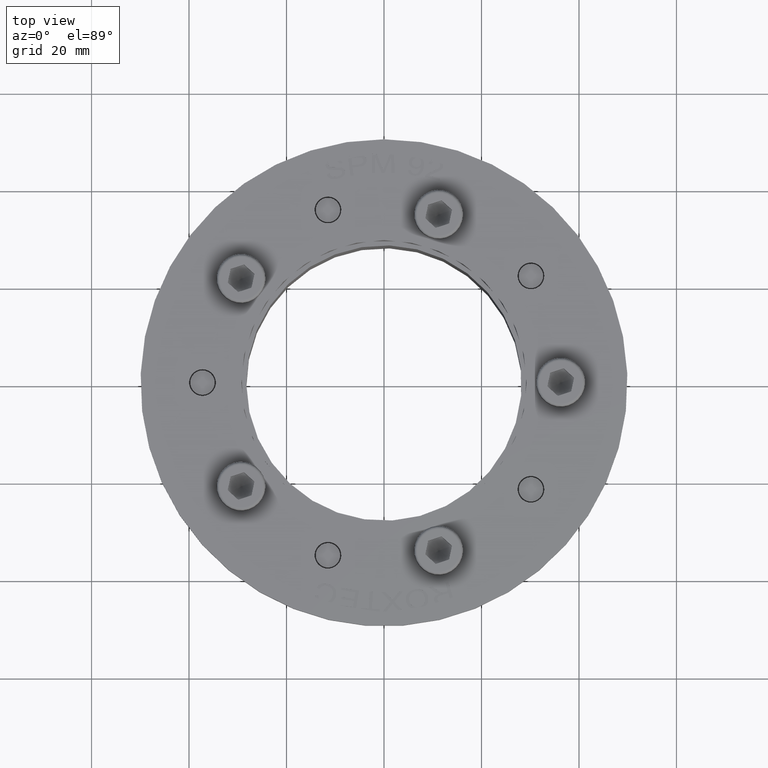
[diagram: clean part render]
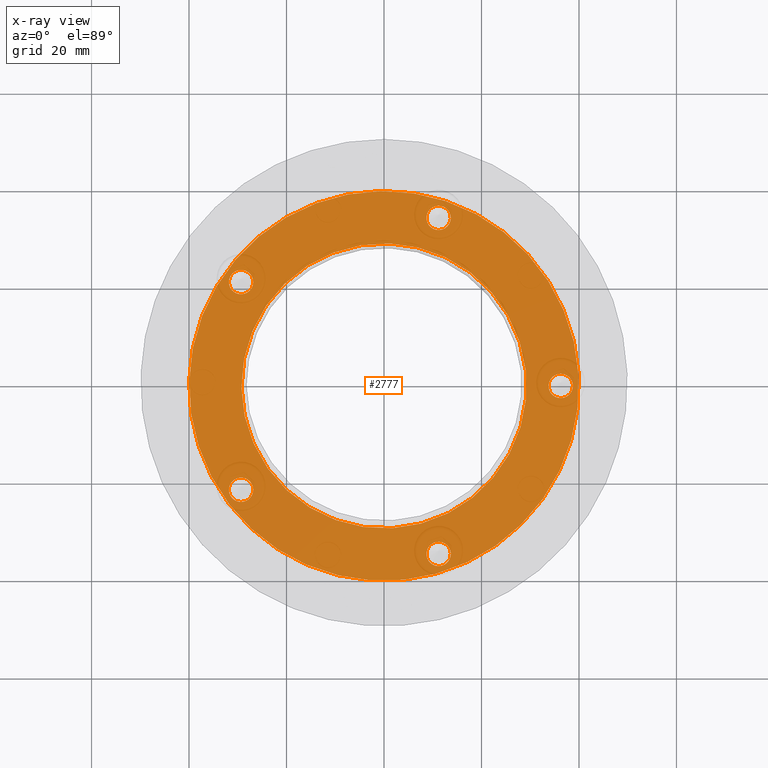
[diagram: x-ray — body ghosted, one internal face saturated and labeled with its STEP entity id]
A machine part, top view, then the same camera in x-ray: the body is ghosted and one INTERNAL B-rep face — a face not visible from any outside direction — is saturated and labeled: STEP entity #2777.
In plain terms, the highlighted planar face has unit normal (0, 0, 1).
Its self-contained STEP definition (entity closure, byte-faithful):
#2560=CARTESIAN_POINT('',(19.480000000000008,1.426637E-014,3.582092E-015));
#2561=VERTEX_POINT('',#2560);
#2562=CARTESIAN_POINT('',(-9.769999999999993,7.771561E-015,0.0));
#2563=DIRECTION('',(0.0,-1.0,0.0));
#2564=DIRECTION('',(-1.0,0.0,0.0));
#2565=AXIS2_PLACEMENT_3D('',#2562,#2563,#2564);
#2566=CIRCLE('',#2565,29.250000000000004);
#2567=EDGE_CURVE('',#2561,#2561,#2566,.T.);
#2588=CARTESIAN_POINT('',(-43.473256229761958,1.715389E-016,13.579507336829728));
#2589=VERTEX_POINT('',#2588);
#2590=CARTESIAN_POINT('',(-44.245798715699323,0.0,11.201866046091844));
#2591=DIRECTION('',(2.120337E-017,-1.0,6.525727E-017));
#2592=DIRECTION('',(-0.309016994374947,-6.861556E-017,-0.951056516295154));
#2593=AXIS2_PLACEMENT_3D('',#2590,#2591,#2592);
#2594=CIRCLE('',#2593,2.5);
#2595=EDGE_CURVE('',#2589,#2589,#2594,.T.);
#2616=CARTESIAN_POINT('',(-33.099757881539517,2.604019E-015,-27.857402915360669));
#2617=VERTEX_POINT('',#2616);
#2618=CARTESIAN_POINT('',(-31.077215395602146,3.053113E-015,-29.326866046091851));
#2619=DIRECTION('',(1.453301E-016,-1.0,-1.055885E-016));
#2620=DIRECTION('',(0.809016994374947,1.796379E-016,-0.587785252292473));
#2621=AXIS2_PLACEMENT_3D('',#2618,#2619,#2620);
#2622=CIRCLE('',#2621,2.5);
#2623=EDGE_CURVE('',#2617,#2617,#2622,.T.);
#2644=CARTESIAN_POINT('',(9.514672909664796,1.204091E-014,-30.796329176823029));
#2645=VERTEX_POINT('',#2644);
#2646=CARTESIAN_POINT('',(11.537215395602164,1.249001E-014,-29.326866046091844));
#2647=DIRECTION('',(1.453301E-016,-1.0,1.055885E-016));
#2648=DIRECTION('',(0.809016994374947,1.796379E-016,0.587785252292473));
#2649=AXIS2_PLACEMENT_3D('',#2646,#2647,#2648);
#2650=CIRCLE('',#2649,2.5);
#2651=EDGE_CURVE('',#2645,#2645,#2650,.T.);
#2672=CARTESIAN_POINT('',(25.478341201636702,1.599222E-014,8.824224755353963));
#2673=VERTEX_POINT('',#2672);
#2674=CARTESIAN_POINT('',(24.705798715699331,1.582068E-014,11.201866046091848));
#2675=DIRECTION('',(2.120337E-017,-1.0,-6.525727E-017));
#2676=DIRECTION('',(-0.309016994374948,-6.861556E-017,0.951056516295154));
#2677=AXIS2_PLACEMENT_3D('',#2674,#2675,#2676);
#2678=CIRCLE('',#2677,2.5);
#2679=EDGE_CURVE('',#2673,#2673,#2678,.T.);
#2700=CARTESIAN_POINT('',(-7.269999999999993,8.326673E-015,36.25));
#2701=VERTEX_POINT('',#2700);
#2702=CARTESIAN_POINT('',(-9.769999999999993,7.771561E-015,36.25));
#2703=DIRECTION('',(0.0,-1.0,0.0));
#2704=DIRECTION('',(-1.0,0.0,0.0));
#2705=AXIS2_PLACEMENT_3D('',#2702,#2703,#2704);
#2706=CIRCLE('',#2705,2.5);
#2707=EDGE_CURVE('',#2701,#2701,#2706,.T.);
#2739=CARTESIAN_POINT('',(-49.755570274622833,-1.154165E-015,-9.793640E-015));
#2740=VERTEX_POINT('',#2739);
#2741=CARTESIAN_POINT('',(-9.769999999999993,8.604228E-015,0.0));
#2742=DIRECTION('',(0.0,-1.0,0.0));
#2743=DIRECTION('',(1.0,0.0,0.0));
#2744=AXIS2_PLACEMENT_3D('',#2741,#2742,#2743);
#2745=CIRCLE('',#2744,39.985570274622837);
#2746=EDGE_CURVE('',#2740,#2740,#2745,.T.);
#2751=CARTESIAN_POINT('',(-45.440033517824489,1.899105E-017,0.0));
#2752=DIRECTION('',(0.0,1.0,0.0));
#2753=DIRECTION('',(0.0,0.0,1.0));
#2754=AXIS2_PLACEMENT_3D('',#2751,#2752,#2753);
#2755=PLANE('',#2754);
#2756=ORIENTED_EDGE('',*,*,#2746,.F.);
#2757=EDGE_LOOP('',(#2756));
#2758=FACE_OUTER_BOUND('',#2757,.T.);
#2759=ORIENTED_EDGE('',*,*,#2567,.T.);
#2760=EDGE_LOOP('',(#2759));
#2761=FACE_BOUND('',#2760,.T.);
#2762=ORIENTED_EDGE('',*,*,#2595,.T.);
#2763=EDGE_LOOP('',(#2762));
#2764=FACE_BOUND('',#2763,.T.);
#2765=ORIENTED_EDGE('',*,*,#2623,.T.);
#2766=EDGE_LOOP('',(#2765));
#2767=FACE_BOUND('',#2766,.T.);
#2768=ORIENTED_EDGE('',*,*,#2651,.T.);
#2769=EDGE_LOOP('',(#2768));
#2770=FACE_BOUND('',#2769,.T.);
#2771=ORIENTED_EDGE('',*,*,#2679,.T.);
#2772=EDGE_LOOP('',(#2771));
#2773=FACE_BOUND('',#2772,.T.);
#2774=ORIENTED_EDGE('',*,*,#2707,.T.);
#2775=EDGE_LOOP('',(#2774));
#2776=FACE_BOUND('',#2775,.T.);
#2777=ADVANCED_FACE('',(#2758,#2761,#2764,#2767,#2770,#2773,#2776),#2755,.T.);